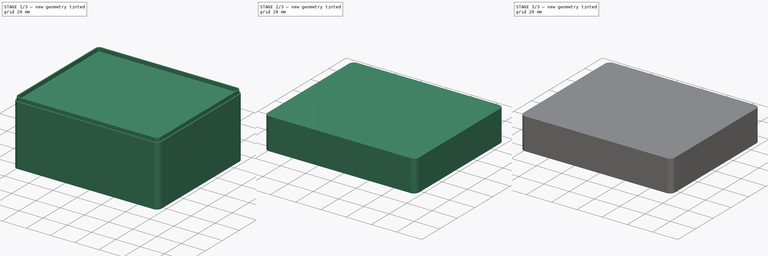
[diagram: build sequence overview — one tinted view per stage of 3, left to right]
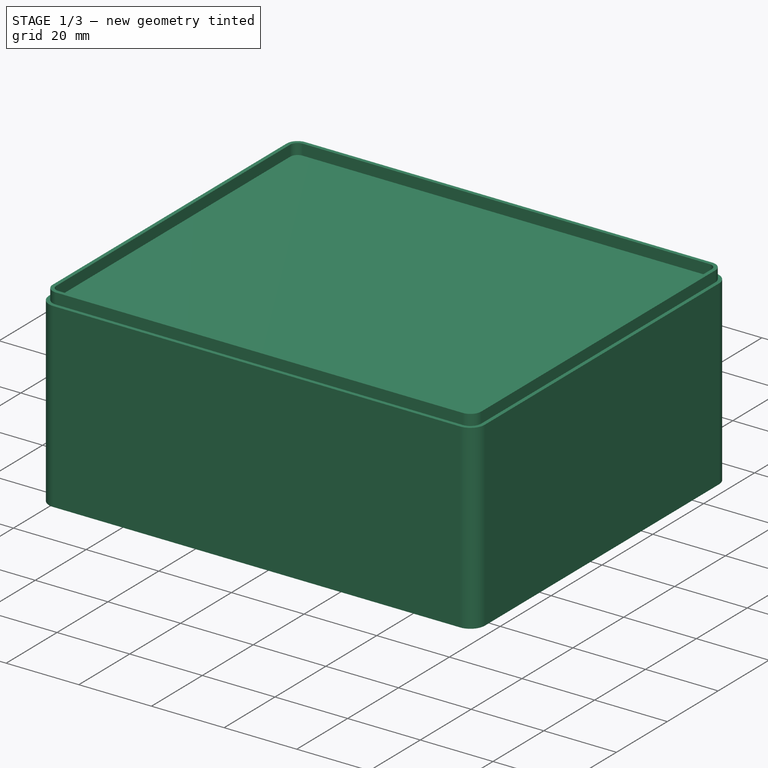
[diagram: stage 1 of 3 — iso view after this stage's code; geometry added in this stage tinted green]
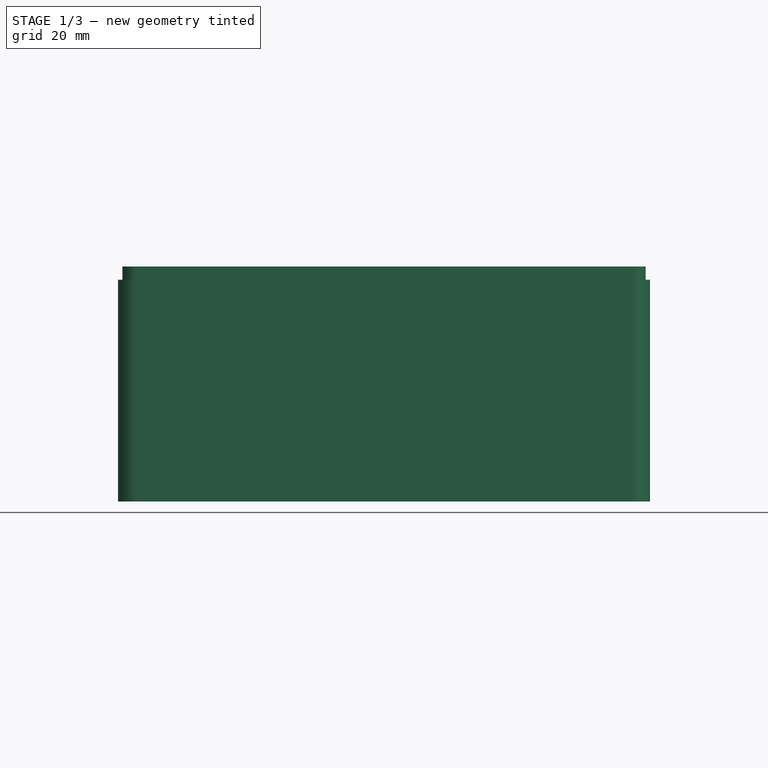
[diagram: stage 1 of 3 — front view after this stage's code; geometry added in this stage tinted green]
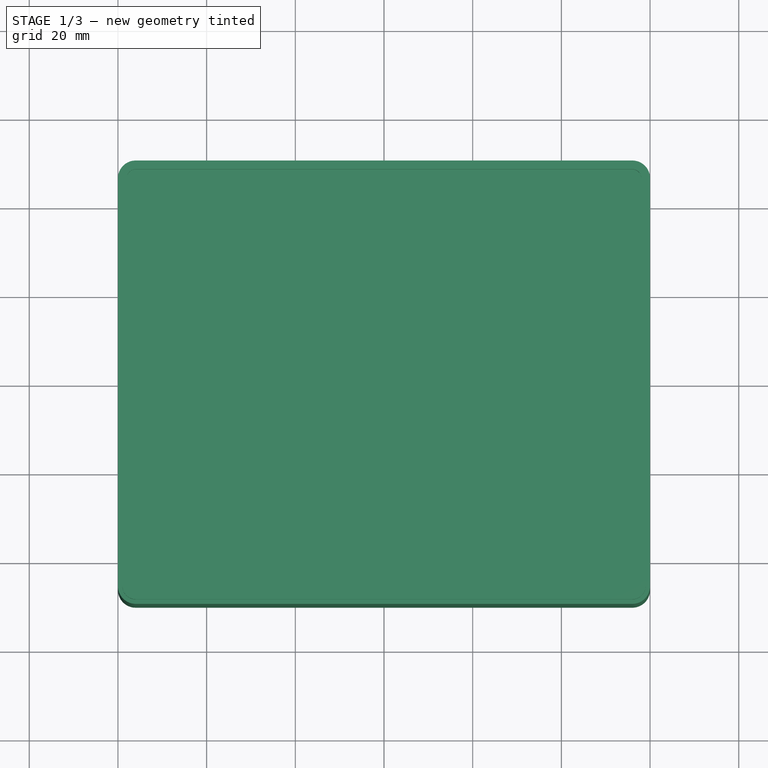
[diagram: stage 1 of 3 — top view after this stage's code; geometry added in this stage tinted green]
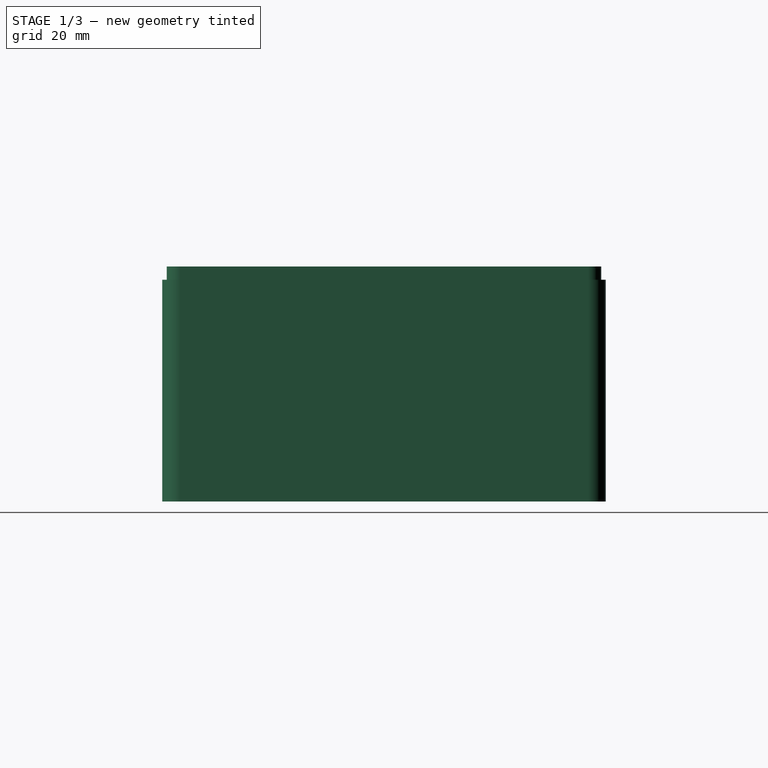
[diagram: stage 1 of 3 — right view after this stage's code; geometry added in this stage tinted green]
FCSTD DOCUMENT  (FreeCAD 1.0R39319 (Git))
Label: keepsake box
License: All rights reserved
LicenseURL: https://en.wikipedia.org/wiki/All_rights_reserved
objects: Sketcher::SketchObject×6, PartDesign::Pad×3, PartDesign::Pocket×2, PartDesign::Body×2, Spreadsheet::Sheet×1, PartDesign::SubShapeBinder×1, PartDesign::Thickness×1
note: 33 computed .brp shape members not serialized (recipe doc carries the construction recipe); baked Part::Feature solids carry a one-line shape summary decoded from their .brp

FEATURE [Spreadsheet::Sheet] Spreadsheet  label="Globals"
  cells = A1='Length; B1(length)==100 mm; A2='Width; B2(width)==120 mm; A3='Base Height; B3(base_height)==50 mm; A4='Lid Height; B4(lip_height)==25 mm; A5='Fillet; B5(fillet)==4 mm; A6='Thickness; B6(thickness)==2 mm; A7='Gap; B7(gap)==0.2 mm
FEATURE [Sketcher::SketchObject] Sketch
  ArcFitTolerance = 1e-06
  AttachmentSupport = -> [XY_Plane]
  FullyConstrained = true
  MakeInternals = false
  MapMode = 5
  expr: Constraints[23] = <<Globals>>.length
  expr: Constraints[24] = <<Globals>>.width
  expr: Constraints[25] = <<Globals>>.fillet
  sketch-geometry (12):
    g0: LineSegment StartX=-60 StartY=46 StartZ=0 EndX=-60 EndY=-46 EndZ=0
    g1: LineSegment StartX=-56 StartY=-50 StartZ=0 EndX=56 EndY=-50 EndZ=0
    g2: LineSegment StartX=60 StartY=-46 StartZ=0 EndX=60 EndY=46 EndZ=0
    g3: LineSegment StartX=56 StartY=50 StartZ=0 EndX=-56 EndY=50 EndZ=0
    g4: ArcOfCircle CenterX=-56 CenterY=46 CenterZ=0 NormalX=0 NormalY=0 NormalZ=1 AngleXU=0 Radius=4 StartAngle=1.5708 EndAngle=3.14159
    g5: GeomPoint [constr] X=-60 Y=50 Z=0
    g6: ArcOfCircle CenterX=-56 CenterY=-46 CenterZ=0 NormalX=0 NormalY=0 NormalZ=1 AngleXU=0 Radius=4 StartAngle=3.14159 EndAngle=4.71239
    g7: GeomPoint [constr] X=-60 Y=-50 Z=0
    g8: ArcOfCircle CenterX=56 CenterY=-46 CenterZ=0 NormalX=0 NormalY=0 NormalZ=1 AngleXU=0 Radius=4 StartAngle=4.71239 EndAngle=6.28319
    g9: GeomPoint [constr] X=60 Y=-50 Z=0
    g10: ArcOfCircle CenterX=56 CenterY=46 CenterZ=0 NormalX=0 NormalY=0 NormalZ=1 AngleXU=0 Radius=4 StartAngle=1.50253e-11 EndAngle=1.5708
    g11: GeomPoint [constr] X=60 Y=50 Z=0
  constraints (27):
    c: Vertical(g0)
    c: Vertical(g2)
    c: Horizontal(g1)
    c: Horizontal(g3)
    c: PointOnObject(g5,g3)
    c: PointOnObject(g5,g0)
    c: Tangent(g3,g4) = -1.5708
    c: Tangent(g0,g4) = -1.5708
    c: PointOnObject(g7,g0)
    c: PointOnObject(g7,g1)
    c: Tangent(g0,g6) = -1.5708
    c: Tangent(g1,g6) = -1.5708
    c: PointOnObject(g9,g1)
    c: PointOnObject(g9,g2)
    c: Tangent(g1,g8) = -1.5708
    c: Tangent(g2,g8) = -1.5708
    c: PointOnObject(g11,g3)
    c: PointOnObject(g11,g2)
    c: Tangent(g3,g10) = -1.5708
    c: Tangent(g2,g10) = -1.5708
    c: Equal(g4,g6)
    c: Equal(g4,g10)
    c: Equal(g4,g8)
    c: DistanceY(g1,g3) = 100
    c: DistanceX(g0,g2) = 120
    c: Radius(g4) = 4
    c: Symmetric(g4,g8,g-1)
FEATURE [PartDesign::Pad] Pad
  Direction = (0,0,1)
  Length = 50
  Length2 = 10
  Profile = -> Sketch
  ReferenceAxis = -> Sketch [N_Axis]
  Refine = true
  Suppressed = false
  Type = 0
  expr: Length = <<Globals>>.base_height
FEATURE [Sketcher::SketchObject] Sketch001
  ArcFitTolerance = 1e-06
  AttachmentOffset = pos=(0,0,50) rot=(0,0,1;0rad)
  AttachmentSupport = -> [XY_Plane]
  FullyConstrained = true
  MakeInternals = false
  MapMode = 5
  Placement = pos=(0,0,50) rot=(0,0,1;0rad)
  expr: .AttachmentOffset.Base.z = <<Globals>>.base_height
  expr: Constraints[20] = <<Globals>>.length - <<Globals>>.thickness
  expr: Constraints[21] = <<Globals>>.width - <<Globals>>.thickness
  expr: Constraints[22] = <<Globals>>.fillet - <<Globals>>.thickness / 2
  expr: Constraints[43] = <<Globals>>.width - 2 * <<Globals>>.thickness
  expr: Constraints[44] = <<Globals>>.length - 2 * <<Globals>>.thickness
  expr: Constraints[45] = <<Globals>>.fillet - <<Globals>>.thickness
  sketch-geometry (20):
    g0: LineSegment StartX=-59 StartY=46 StartZ=0 EndX=-59 EndY=-46 EndZ=0
    g1: LineSegment StartX=-56 StartY=-49 StartZ=0 EndX=56 EndY=-49 EndZ=0
    g2: LineSegment StartX=59 StartY=-46 StartZ=0 EndX=59 EndY=46 EndZ=0
    g3: LineSegment StartX=56 StartY=49 StartZ=0 EndX=-56 EndY=49 EndZ=0
    g4: ArcOfCircle CenterX=-56 CenterY=46 CenterZ=0 NormalX=0 NormalY=0 NormalZ=1 AngleXU=0 Radius=3 StartAngle=1.5708 EndAngle=3.14159
    g5: ArcOfCircle CenterX=-56 CenterY=-46 CenterZ=0 NormalX=0 NormalY=0 NormalZ=1 AngleXU=0 Radius=3 StartAngle=3.14159 EndAngle=4.71239
    g6: ArcOfCircle CenterX=56 CenterY=-46 CenterZ=0 NormalX=0 NormalY=0 NormalZ=1 AngleXU=0 Radius=3 StartAngle=4.71239 EndAngle=6.28319
    g7: ArcOfCircle CenterX=56 CenterY=46 CenterZ=0 NormalX=0 NormalY=0 NormalZ=1 AngleXU=0 Radius=3 StartAngle=0 EndAngle=1.5708
    g8: GeomPoint [constr] X=-59 Y=49 Z=0
    g9: GeomPoint [constr] X=59 Y=-49 Z=0
    g10: LineSegment StartX=-58 StartY=46 StartZ=0 EndX=-58 EndY=-46 EndZ=0
    g11: LineSegment StartX=-56 StartY=-48 StartZ=0 EndX=56 EndY=-48 EndZ=0
    g12: LineSegment StartX=58 StartY=-46 StartZ=0 EndX=58 EndY=46 EndZ=0
    g13: LineSegment StartX=56 StartY=48 StartZ=0 EndX=-56 EndY=48 EndZ=0
    g14: ArcOfCircle CenterX=-56 CenterY=46 CenterZ=0 NormalX=0 NormalY=0 NormalZ=1 AngleXU=0 Radius=2 StartAngle=1.5708 EndAngle=3.14159
    g15: ArcOfCircle CenterX=-56 CenterY=-46 CenterZ=0 NormalX=0 NormalY=0 NormalZ=1 AngleXU=0 Radius=2 StartAngle=3.14159 EndAngle=4.71239
    g16: ArcOfCircle CenterX=56 CenterY=-46 CenterZ=0 NormalX=0 NormalY=0 NormalZ=1 AngleXU=0 Radius=2 StartAngle=4.71239 EndAngle=6.28319
    g17: ArcOfCircle CenterX=56 CenterY=46 CenterZ=0 NormalX=0 NormalY=0 NormalZ=1 AngleXU=0 Radius=2 StartAngle=1.8e-15 EndAngle=1.5708
    g18: GeomPoint [constr] X=-58 Y=48 Z=0
    g19: GeomPoint [constr] X=58 Y=-48 Z=0
  constraints (46):
    c: Tangent(g0,g4) = -1.5708
    c: Tangent(g0,g5) = -1.5708
    c: Tangent(g1,g5) = -1.5708
    c: Tangent(g1,g6) = -1.5708
    c: Tangent(g2,g6) = -1.5708
    c: Tangent(g2,g7) = -1.5708
    c: Tangent(g3,g7) = -1.5708
    c: Tangent(g3,g4) = -1.5708
    c: Vertical(g0)
    c: Vertical(g2)
    c: Horizontal(g1)
    c: Horizontal(g3)
    c: Equal(g4,g5)
    c: Equal(g5,g6)
    c: Equal(g6,g7)
    c: PointOnObject(g8,g0)
    c: PointOnObject(g8,g3)
    c: PointOnObject(g9,g1)
    c: PointOnObject(g9,g2)
    c: Symmetric(g4,g6,g-1)
    c: DistanceY(g1,g3) = 98
    c: DistanceX(g0,g2) = 118
    c: Radius(g4) = 3
    c: Tangent(g10,g14) = -1.5708
    c: Tangent(g10,g15) = -1.5708
    c: Tangent(g11,g15) = -1.5708
    c: Tangent(g11,g16) = -1.5708
    c: Tangent(g12,g16) = -1.5708
    c: Tangent(g12,g17) = -1.5708
    c: Tangent(g13,g17) = -1.5708
    c: Tangent(g13,g14) = -1.5708
    c: Vertical(g10)
    c: Vertical(g12)
    c: Horizontal(g11)
    c: Horizontal(g13)
    c: Equal(g14,g15)
    c: Equal(g15,g16)
    c: Equal(g16,g17)
    c: PointOnObject(g18,g10)
    c: PointOnObject(g18,g13)
    c: PointOnObject(g19,g11)
    c: PointOnObject(g19,g12)
    c: Symmetric(g14,g16,g-1)
    c: DistanceX(g10,g12) = 116
    c: DistanceY(g11,g13) = 96
    c: Radius(g17) = 2
FEATURE [PartDesign::Pad] Pad001
  BaseFeature = -> Pad
  Direction = (0,0,1)
  Length = 3
  Length2 = 10
  Profile = -> Sketch001
  ReferenceAxis = -> Sketch001 [N_Axis]
  Refine = true
  Suppressed = false
  Type = 0
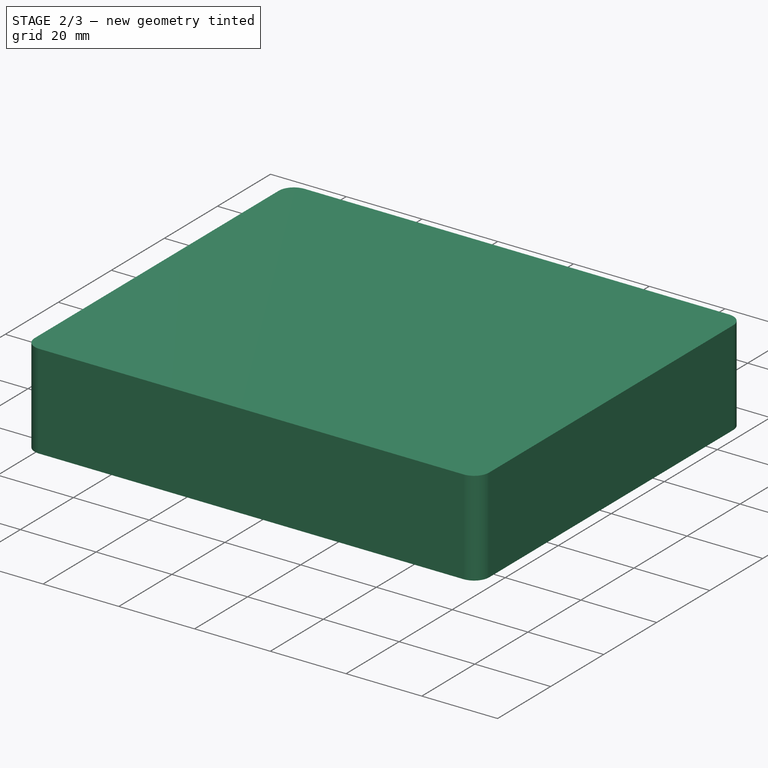
[diagram: stage 2 of 3 — iso view after this stage's code; geometry added in this stage tinted green]
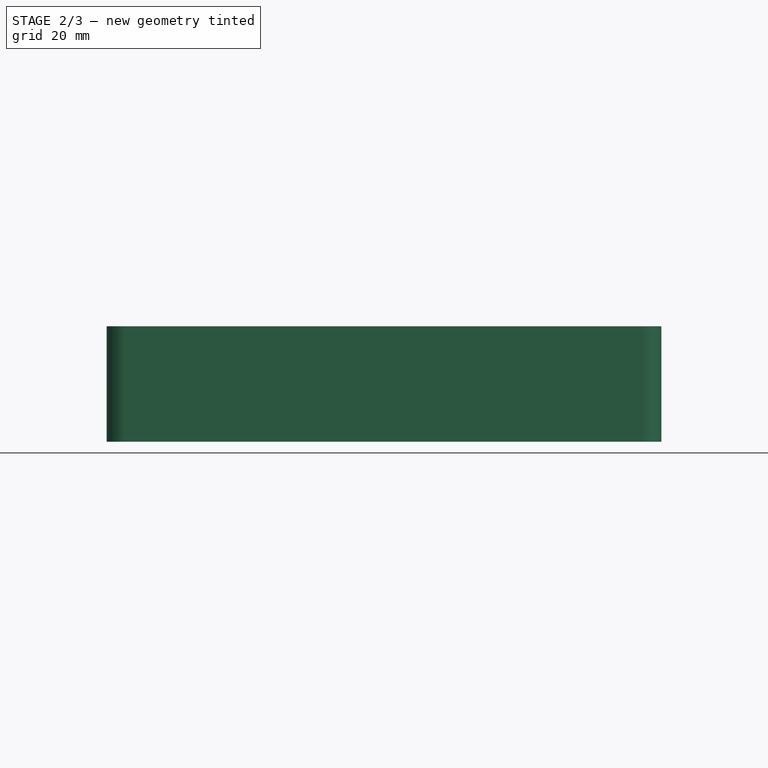
[diagram: stage 2 of 3 — front view after this stage's code; geometry added in this stage tinted green]
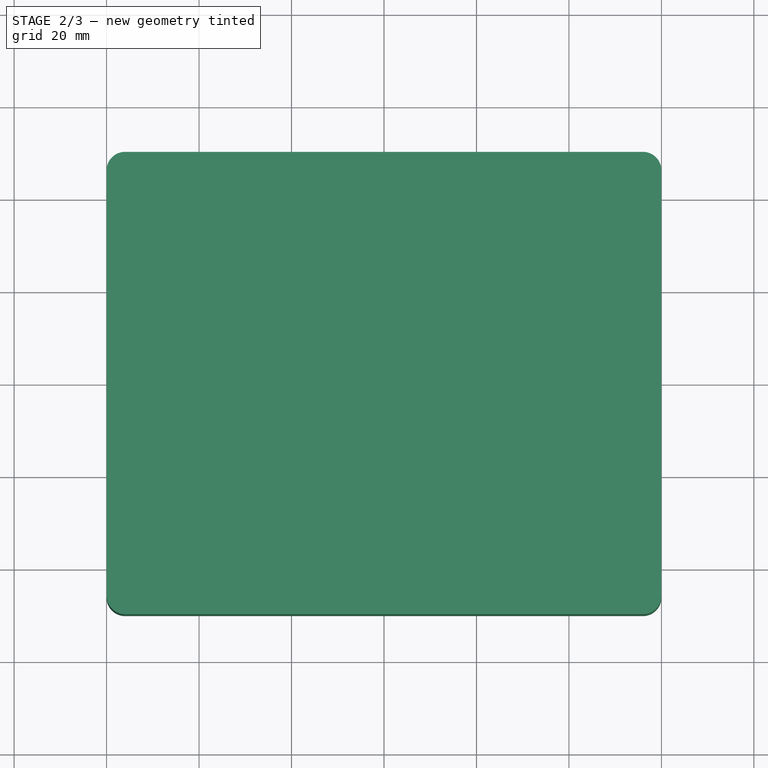
[diagram: stage 2 of 3 — top view after this stage's code; geometry added in this stage tinted green]
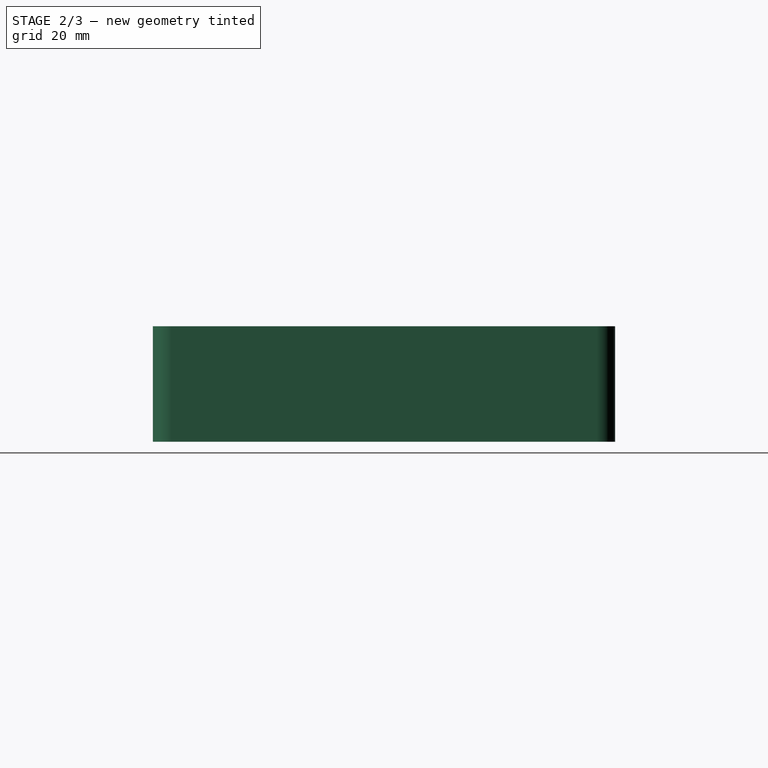
[diagram: stage 2 of 3 — right view after this stage's code; geometry added in this stage tinted green]
FEATURE [Sketcher::SketchObject] Sketch002
  ArcFitTolerance = 1e-06
  AttachmentSupport = -> [Pad001]
  ExternalGeometry = -> [Pad001]
  FullyConstrained = true
  MakeInternals = false
  MapMode = 5
  Placement = pos=(0,0,50) rot=(0,0,1;0rad)
FEATURE [Sketcher::SketchObject] Sketch003
  ArcFitTolerance = 1e-06
  AttachmentSupport = -> [Pad001]
  ExternalGeometry = -> [Pad001]
  FullyConstrained = true
  MakeInternals = false
  MapMode = 5
  Placement = pos=(0,0,50) rot=(0,0,1;0rad)
  sketch-geometry (10):
    g0: LineSegment StartX=-58 StartY=46 StartZ=0 EndX=-58 EndY=-46 EndZ=0
    g1: LineSegment StartX=-56 StartY=-48 StartZ=0 EndX=56 EndY=-48 EndZ=0
    g2: LineSegment StartX=58 StartY=-46 StartZ=0 EndX=58 EndY=46 EndZ=0
    g3: LineSegment StartX=56 StartY=48 StartZ=0 EndX=-56 EndY=48 EndZ=0
    g4: ArcOfCircle CenterX=-56 CenterY=46 CenterZ=0 NormalX=0 NormalY=0 NormalZ=1 AngleXU=0 Radius=2 StartAngle=1.5708 EndAngle=3.14159
    g5: ArcOfCircle CenterX=-56 CenterY=-46 CenterZ=0 NormalX=0 NormalY=0 NormalZ=1 AngleXU=0 Radius=2 StartAngle=3.14159 EndAngle=4.71239
    g6: ArcOfCircle CenterX=56 CenterY=-46 CenterZ=0 NormalX=0 NormalY=0 NormalZ=1 AngleXU=0 Radius=2 StartAngle=4.71239 EndAngle=6.28319
    g7: ArcOfCircle CenterX=56 CenterY=46 CenterZ=0 NormalX=0 NormalY=0 NormalZ=1 AngleXU=0 Radius=2 StartAngle=1.3e-15 EndAngle=1.5708
    g8: GeomPoint [constr] X=-58 Y=48 Z=0
    g9: GeomPoint [constr] X=58 Y=-48 Z=0
  constraints (23):
    c: Tangent(g0,g4) = -1.5708
    c: Tangent(g0,g5) = -1.5708
    c: Tangent(g1,g5) = -1.5708
    c: Tangent(g1,g6) = -1.5708
    c: Tangent(g2,g6) = -1.5708
    c: Tangent(g2,g7) = -1.5708
    c: Tangent(g3,g7) = -1.5708
    c: Tangent(g3,g4) = -1.5708
    c: Vertical(g0)
    c: Vertical(g2)
    c: Horizontal(g1)
    c: Horizontal(g3)
    c: Equal(g4,g5)
    c: Equal(g5,g6)
    c: Equal(g6,g7)
    c: PointOnObject(g8,g0)
    c: PointOnObject(g8,g3)
    c: PointOnObject(g9,g1)
    c: PointOnObject(g9,g2)
    c: Equal(g-7,g3)
    c: Equal(g-8,g0)
    c: Equal(g-9,g4)
    c: Symmetric(g4,g6,g-1)
FEATURE [PartDesign::Pocket] Pocket
  BaseFeature = -> Pad001
  Direction = (0,0,-1)
  Length = 48
  Length2 = 5
  Profile = -> Sketch003
  ReferenceAxis = -> Sketch003 [N_Axis]
  Refine = true
  Suppressed = false
  Type = 0
  expr: Length = <<Globals>>.base_height - <<Globals>>.thickness
FEATURE [PartDesign::Body] Body  label="base"
  AllowCompound = false
  Group = -> [Sketch,Pad,Sketch001,Pad001,Sketch002,Sketch003,Pocket]
  Origin = -> Origin
  Tip = -> Pocket
FEATURE [PartDesign::SubShapeBinder] Binder
  BindCopyOnChange = 0
  BindMode = 0
  ClaimChildren = false
  Context = -> Body001 [Binder.]
  Fuse = false
  MakeFace = true
  OffsetFill = false
  OffsetIntersection = false
  OffsetJoinType = 0
  OffsetOpenResult = false
  PartialLoad = false
  Refine = true
  Relative = true
  Support = -> [Body]
  _Version = 2
FEATURE [Sketcher::SketchObject] Sketch004
  ArcFitTolerance = 1e-06
  AttachmentOffset = pos=(0,0,50.2) rot=(0,0,1;0rad)
  AttachmentSupport = -> [XY_Plane001]
  ExternalGeometry = -> [Binder]
  FullyConstrained = true
  MakeInternals = false
  MapMode = 5
  Placement = pos=(0,0,50.2) rot=(0,0,1;0rad)
  expr: .AttachmentOffset.Base.z = <<Globals>>.base_height + <<Globals>>.gap
  sketch-geometry (10):
    g0: LineSegment StartX=-60 StartY=46 StartZ=0 EndX=-60 EndY=-46 EndZ=0
    g1: LineSegment StartX=-56 StartY=-50 StartZ=0 EndX=56 EndY=-50 EndZ=0
    g2: LineSegment StartX=60 StartY=-46 StartZ=0 EndX=60 EndY=46 EndZ=0
    g3: LineSegment StartX=56 StartY=50 StartZ=0 EndX=-56 EndY=50 EndZ=0
    g4: ArcOfCircle CenterX=-56 CenterY=46 CenterZ=0 NormalX=0 NormalY=0 NormalZ=1 AngleXU=0 Radius=4 StartAngle=1.5708 EndAngle=3.14159
    g5: ArcOfCircle CenterX=-56 CenterY=-46 CenterZ=0 NormalX=0 NormalY=0 NormalZ=1 AngleXU=0 Radius=4 StartAngle=3.14159 EndAngle=4.71239
    g6: ArcOfCircle CenterX=56 CenterY=-46 CenterZ=0 NormalX=0 NormalY=0 NormalZ=1 AngleXU=0 Radius=4 StartAngle=4.71239 EndAngle=6.28319
    g7: ArcOfCircle CenterX=56 CenterY=46 CenterZ=0 NormalX=0 NormalY=0 NormalZ=1 AngleXU=0 Radius=4 StartAngle=6e-16 EndAngle=1.5708
    g8: GeomPoint [constr] X=-60 Y=50 Z=0
    g9: GeomPoint [constr] X=60 Y=-50 Z=0
  constraints (23):
    c: Tangent(g0,g4) = -1.5708
    c: Tangent(g0,g5) = -1.5708
    c: Tangent(g1,g5) = -1.5708
    c: Tangent(g1,g6) = -1.5708
    c: Tangent(g2,g6) = -1.5708
    c: Tangent(g2,g7) = -1.5708
    c: Tangent(g3,g7) = -1.5708
    c: Tangent(g3,g4) = -1.5708
    c: Vertical(g0)
    c: Vertical(g2)
    c: Horizontal(g1)
    c: Horizontal(g3)
    c: Equal(g4,g5)
    c: Equal(g5,g6)
    c: Equal(g6,g7)
    c: PointOnObject(g8,g0)
    c: PointOnObject(g8,g3)
    c: PointOnObject(g9,g1)
    c: PointOnObject(g9,g2)
    c: Equal(g3,g-5)
    c: Equal(g-7,g0)
    c: Equal(g4,g-6)
    c: Symmetric(g4,g6,g-1)
FEATURE [PartDesign::Pad] Pad002
  Direction = (0,0,1)
  Length = 25
  Length2 = 10
  Profile = -> Sketch004
  ReferenceAxis = -> Sketch004 [N_Axis]
  Refine = true
  Suppressed = false
  Type = 0
  expr: Length = <<Globals>>.lip_height
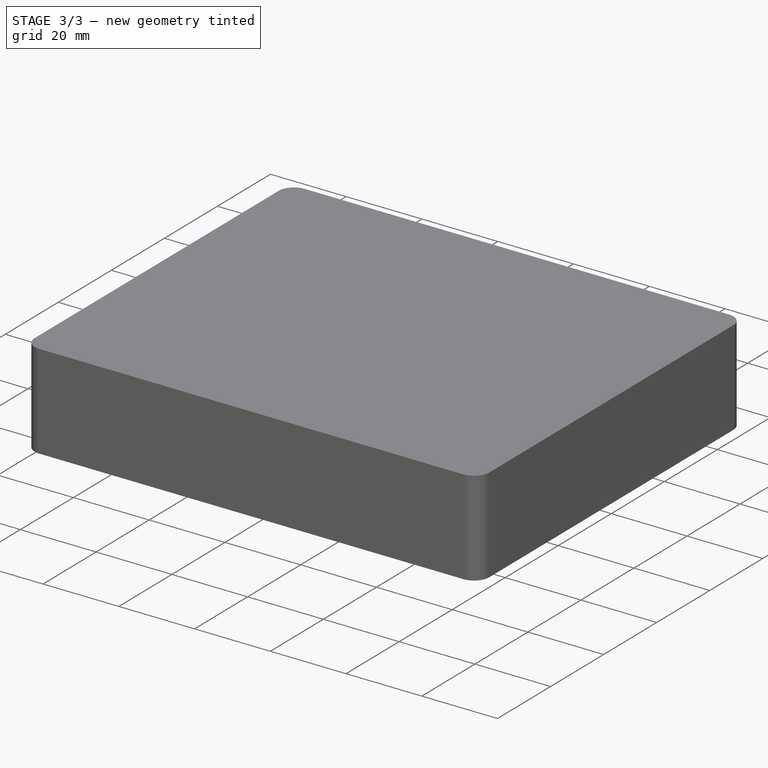
[diagram: stage 3 of 3 — iso view after this stage's code; geometry added in this stage tinted green]
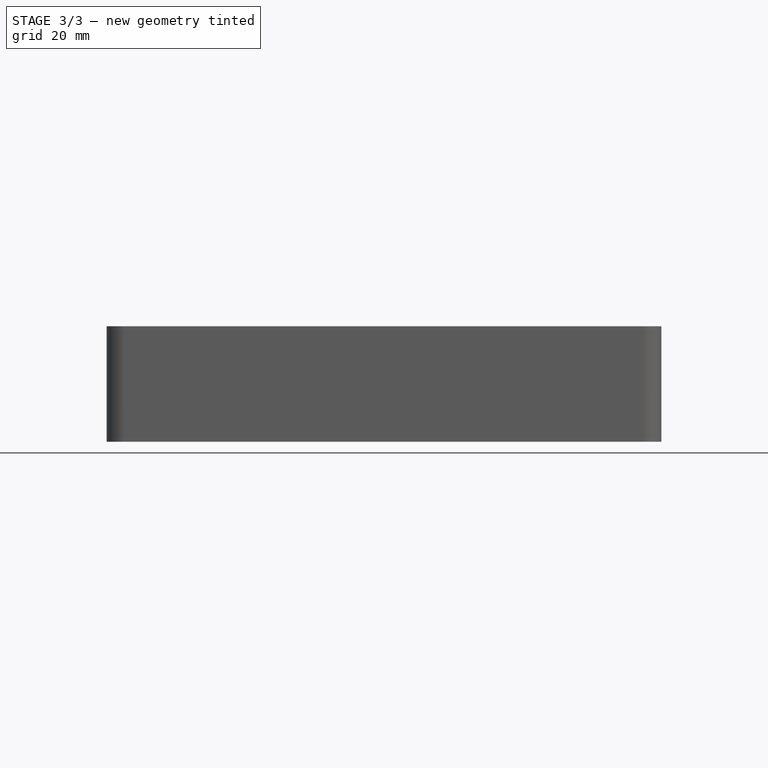
[diagram: stage 3 of 3 — front view after this stage's code; geometry added in this stage tinted green]
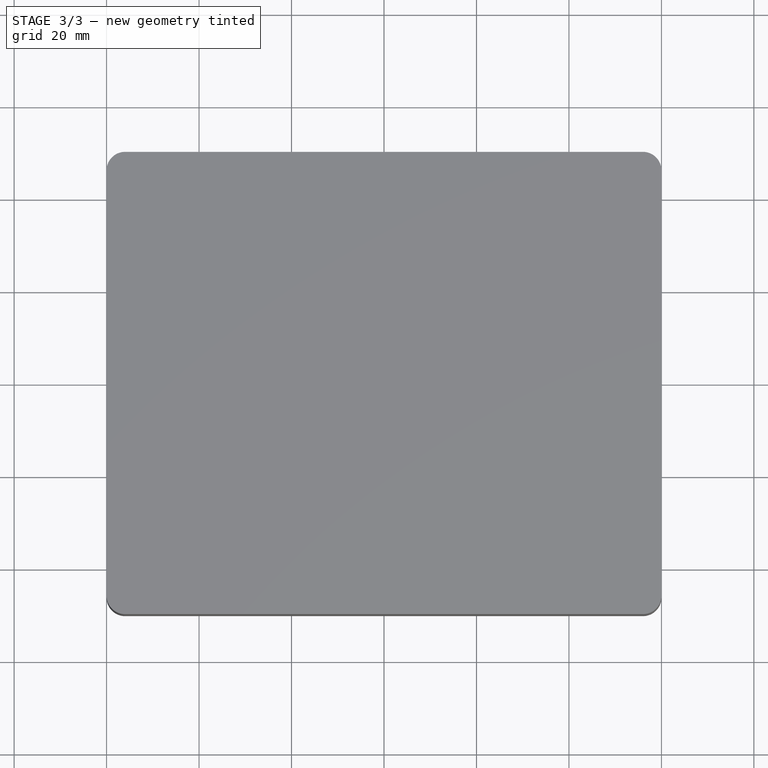
[diagram: stage 3 of 3 — top view after this stage's code; geometry added in this stage tinted green]
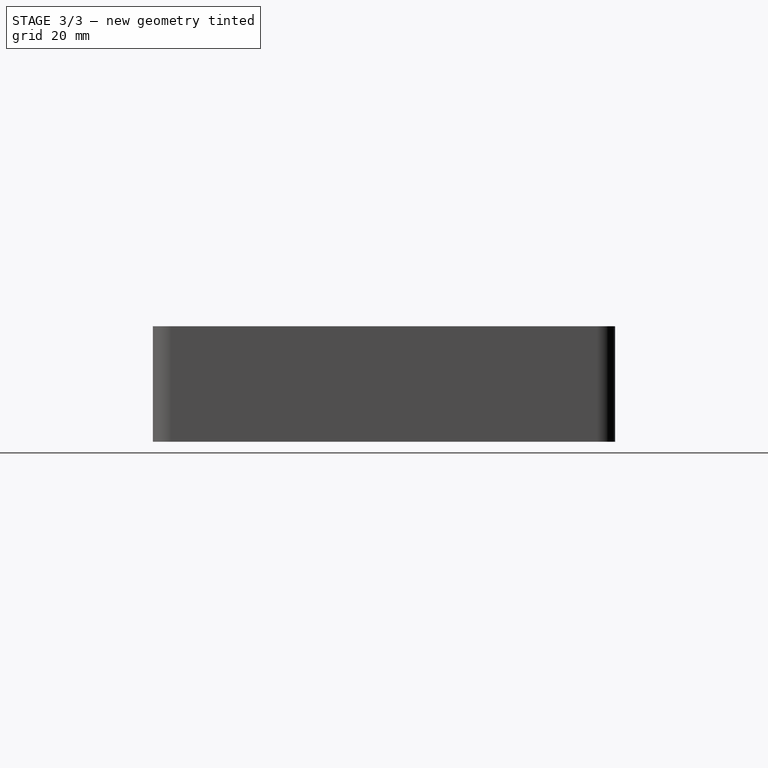
[diagram: stage 3 of 3 — right view after this stage's code; geometry added in this stage tinted green]
FEATURE [PartDesign::Thickness] Thickness
  Base = -> Pad002 [Face9]
  BaseFeature = -> Pad002
  Intersection = false
  Join = 0
  Mode = 0
  Refine = true
  Reversed = true
  SupportTransform = false
  Suppressed = false
  Value = 2
  expr: Value = <<Globals>>.thickness
FEATURE [Sketcher::SketchObject] Sketch005
  ArcFitTolerance = 1e-06
  AttachmentSupport = -> [Thickness]
  FullyConstrained = true
  MakeInternals = false
  MapMode = 5
  Placement = pos=(0,0,50.2) rot=(1,0,0;3.14159rad)
  sketch-geometry (10):
    g0: LineSegment StartX=-19.1 StartY=25.9 StartZ=0 EndX=-19.1 EndY=-25.9 EndZ=0
    g1: LineSegment StartX=-15.9 StartY=-29.1 StartZ=0 EndX=15.9 EndY=-29.1 EndZ=0
    g2: LineSegment StartX=19.1 StartY=-25.9 StartZ=0 EndX=19.1 EndY=25.9 EndZ=0
    g3: LineSegment StartX=15.9 StartY=29.1 StartZ=0 EndX=-15.9 EndY=29.1 EndZ=0
    g4: ArcOfCircle CenterX=-15.9 CenterY=25.9 CenterZ=0 NormalX=0 NormalY=0 NormalZ=1 AngleXU=0 Radius=3.2 StartAngle=1.5708 EndAngle=3.14159
    g5: ArcOfCircle CenterX=-15.9 CenterY=-25.9 CenterZ=0 NormalX=0 NormalY=0 NormalZ=1 AngleXU=0 Radius=3.2 StartAngle=3.14159 EndAngle=4.71239
    g6: ArcOfCircle CenterX=15.9 CenterY=-25.9 CenterZ=0 NormalX=0 NormalY=0 NormalZ=1 AngleXU=0 Radius=3.2 StartAngle=4.71239 EndAngle=6.28319
    g7: ArcOfCircle CenterX=15.9 CenterY=25.9 CenterZ=0 NormalX=0 NormalY=0 NormalZ=1 AngleXU=0 Radius=3.2 StartAngle=0 EndAngle=1.5708
    g8: GeomPoint [constr] X=-19.1 Y=29.1 Z=0
    g9: GeomPoint [constr] X=19.1 Y=-29.1 Z=0
  constraints (23):
    c: Tangent(g0,g4) = -1.5708
    c: Tangent(g0,g5) = -1.5708
    c: Tangent(g1,g5) = -1.5708
    c: Tangent(g1,g6) = -1.5708
    c: Tangent(g2,g6) = -1.5708
    c: Tangent(g2,g7) = -1.5708
    c: Tangent(g3,g7) = -1.5708
    c: Tangent(g3,g4) = -1.5708
    c: Vertical(g0)
    c: Vertical(g2)
    c: Horizontal(g1)
    c: Horizontal(g3)
    c: Equal(g4,g5)
    c: Equal(g5,g6)
    c: Equal(g6,g7)
    c: PointOnObject(g8,g0)
    c: PointOnObject(g8,g3)
    c: PointOnObject(g9,g1)
    c: PointOnObject(g9,g2)
    c: Symmetric(g4,g6,g-1)
    c: Distance(g2,g0) = 38.2
    c: DistanceY(g1,g3) = 58.2
    c: Radius(g4) = 3.2
FEATURE [PartDesign::Pocket] Pocket001
  BaseFeature = -> Thickness
  Direction = (0,0,1)
  Length = 3
  Length2 = 5
  Profile = -> Sketch005
  ReferenceAxis = -> Sketch005 [N_Axis]
  Refine = true
  Suppressed = false
  Type = 0
  expr: Length = Pad001.Length
FEATURE [PartDesign::Body] Body001  label="lid"
  AllowCompound = false
  Group = -> [Binder,Sketch004,Pad002,Thickness,Sketch005,Pocket001]
  Origin = -> Origin001
  Tip = -> Pocket001
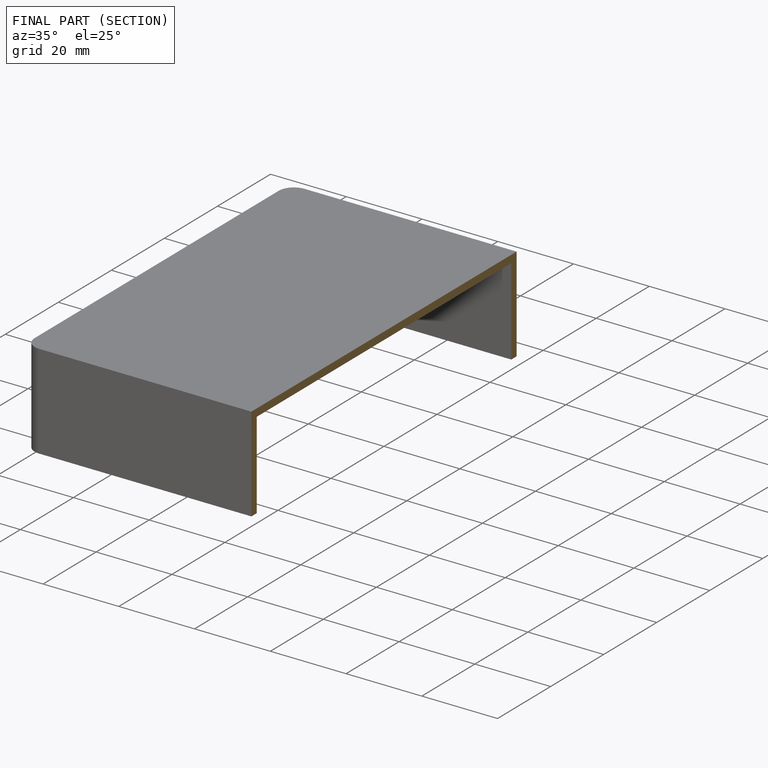
[diagram: finished part — half-section view (interior)]
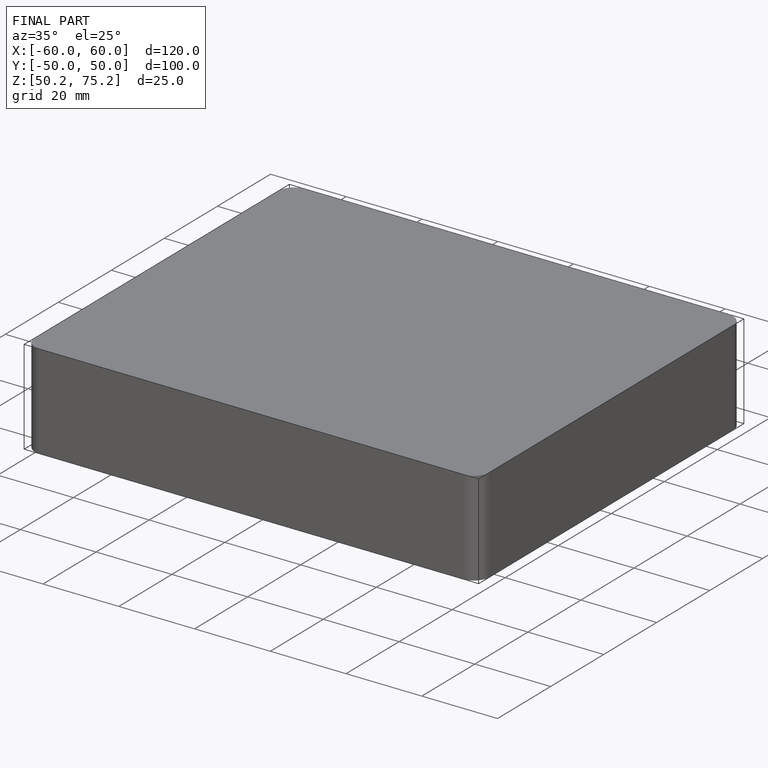
[diagram: finished part — iso view with bounding-box wireframe]
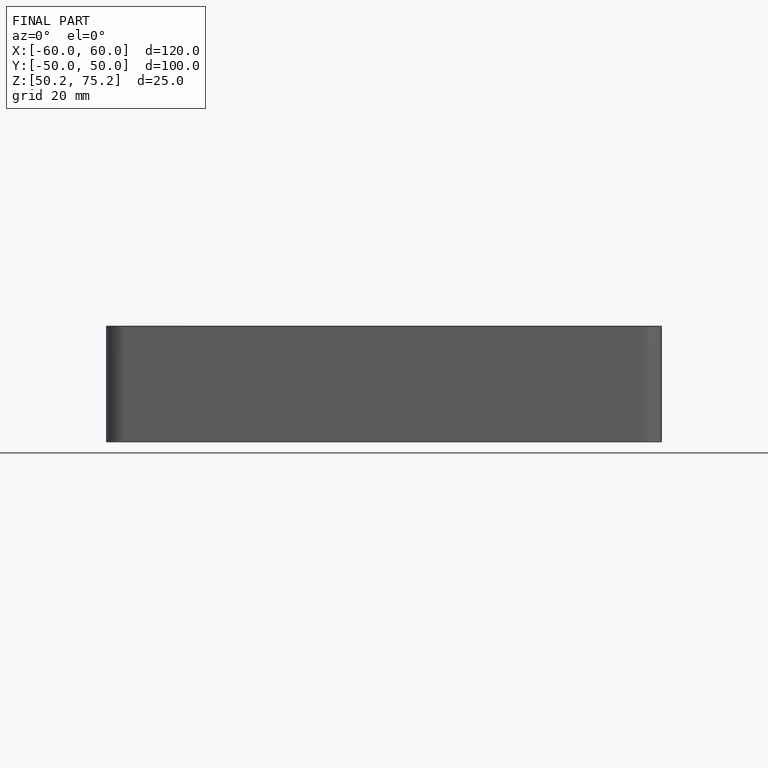
[diagram: finished part — front view with bounding-box wireframe]
